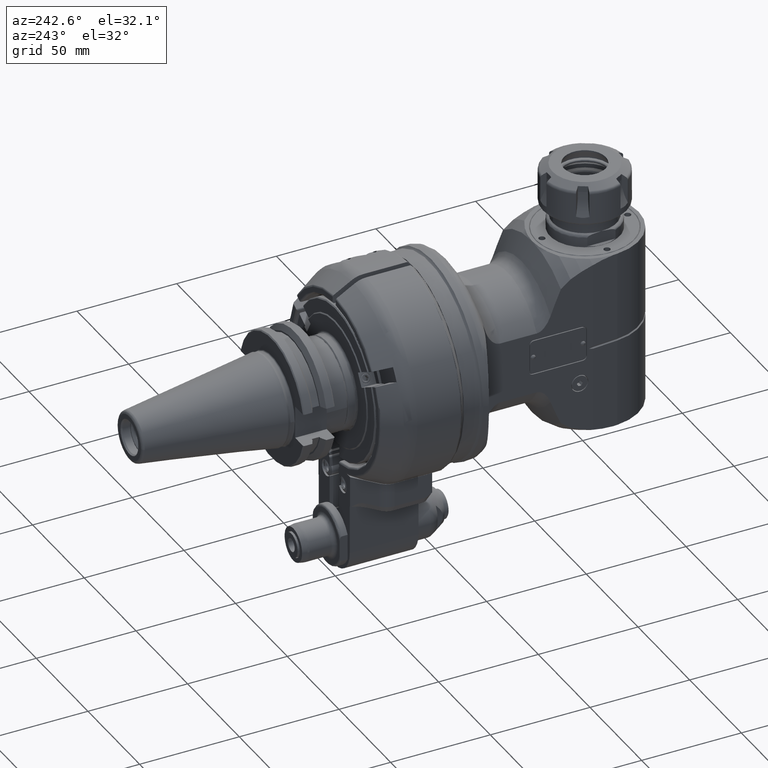
[diagram: clean part render]
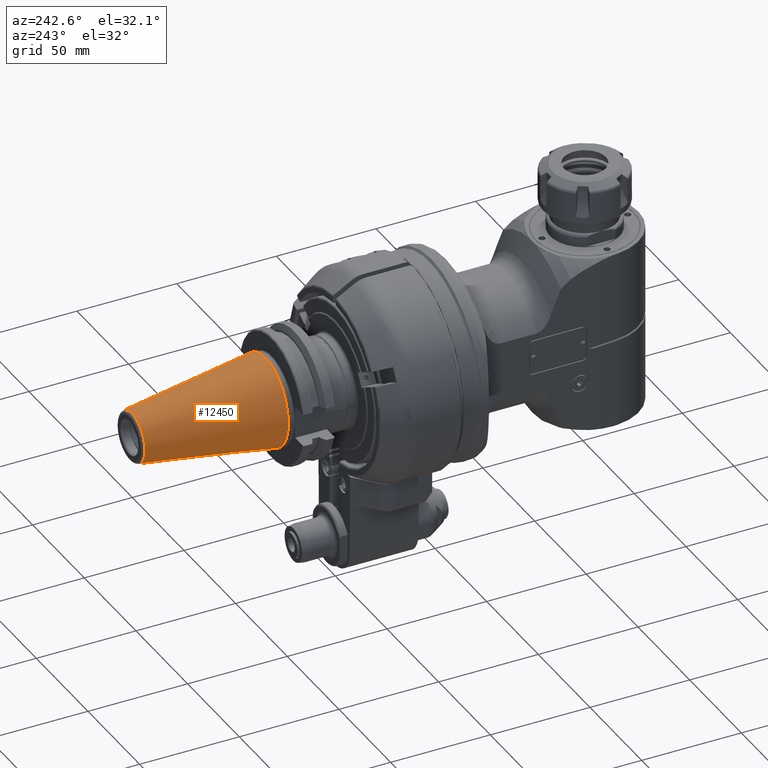
[diagram: same view with one face highlighted and labeled with its STEP entity id]
A machine part, auxiliary view. The second image highlights one B-rep face of the part: STEP entity #12450.
In plain terms, the highlighted conical surface has half-angle 8.297 deg.
Its self-contained STEP definition (entity closure, byte-faithful):
#1336=FACE_OUTER_BOUND('',#2146,.T.);
#2146=EDGE_LOOP('',(#9126,#9127,#9128,#9129,#9130));
#3050=CIRCLE('',#13466,22.225);
#3051=CIRCLE('',#13468,12.45906381812);
#3052=CIRCLE('',#13469,12.45906381812);
#3809=LINE('',#19967,#4604);
#4604=VECTOR('',#15495,17.34203190906);
#5494=VERTEX_POINT('',#19962);
#5495=VERTEX_POINT('',#19966);
#5496=VERTEX_POINT('',#19968);
#6866=EDGE_CURVE('',#5494,#5494,#3050,.T.);
#6868=EDGE_CURVE('',#5494,#5495,#3809,.T.);
#6869=EDGE_CURVE('',#5496,#5495,#3051,.T.);
#6870=EDGE_CURVE('',#5495,#5496,#3052,.T.);
#9126=ORIENTED_EDGE('',*,*,#6866,.F.);
#9127=ORIENTED_EDGE('',*,*,#6868,.T.);
#9128=ORIENTED_EDGE('',*,*,#6869,.F.);
#9129=ORIENTED_EDGE('',*,*,#6870,.F.);
#9130=ORIENTED_EDGE('',*,*,#6868,.F.);
#12159=CONICAL_SURFACE('',#13467,17.34203190906,0.144812411498922);
#12450=ADVANCED_FACE('',(#1336),#12159,.T.);
#13466=AXIS2_PLACEMENT_3D('',#19963,#15490,#15491);
#13467=AXIS2_PLACEMENT_3D('',#19965,#15493,#15494);
#13468=AXIS2_PLACEMENT_3D('',#19969,#15496,#15497);
#13469=AXIS2_PLACEMENT_3D('',#19970,#15498,#15499);
#15490=DIRECTION('center_axis',(0.,-1.,0.));
#15491=DIRECTION('ref_axis',(1.,0.,0.));
#15493=DIRECTION('center_axis',(0.,-1.,0.));
#15494=DIRECTION('ref_axis',(-1.,0.,0.));
#15495=DIRECTION('',(-0.144306807239621,0.98953299358046,-1.76724869581176E-17));
#15496=DIRECTION('center_axis',(0.,1.,0.));
#15497=DIRECTION('ref_axis',(1.,0.,0.));
#15498=DIRECTION('center_axis',(0.,1.,0.));
#15499=DIRECTION('ref_axis',(1.,0.,0.));
#19962=CARTESIAN_POINT('',(22.2249999999967,74.0000000000009,-2.72177751110459E-15));
#19963=CARTESIAN_POINT('Origin',(0.,74.,0.));
#19965=CARTESIAN_POINT('Origin',(0.,107.48323010543,0.));
#19966=CARTESIAN_POINT('',(12.45906381812,140.9664602109,0.));
#19967=CARTESIAN_POINT('',(17.34203190906,107.48323010543,2.12378638681416E-15));
#19968=CARTESIAN_POINT('',(-12.45906381812,140.9664602109,-1.52579526252333E-15));
#19969=CARTESIAN_POINT('Origin',(0.,140.9664602109,0.));
#19970=CARTESIAN_POINT('Origin',(0.,140.9664602109,0.));